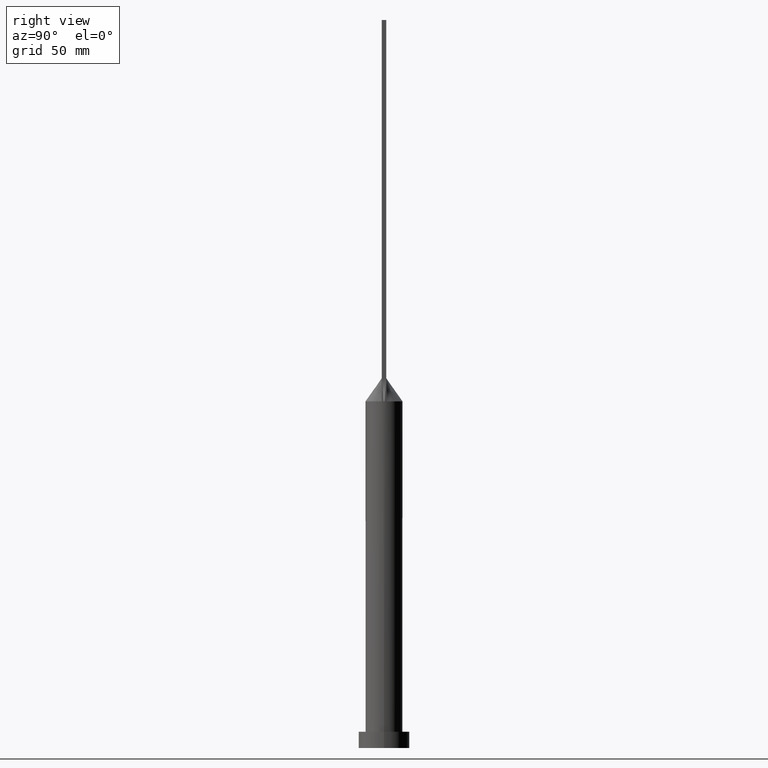
[diagram: clean part render]
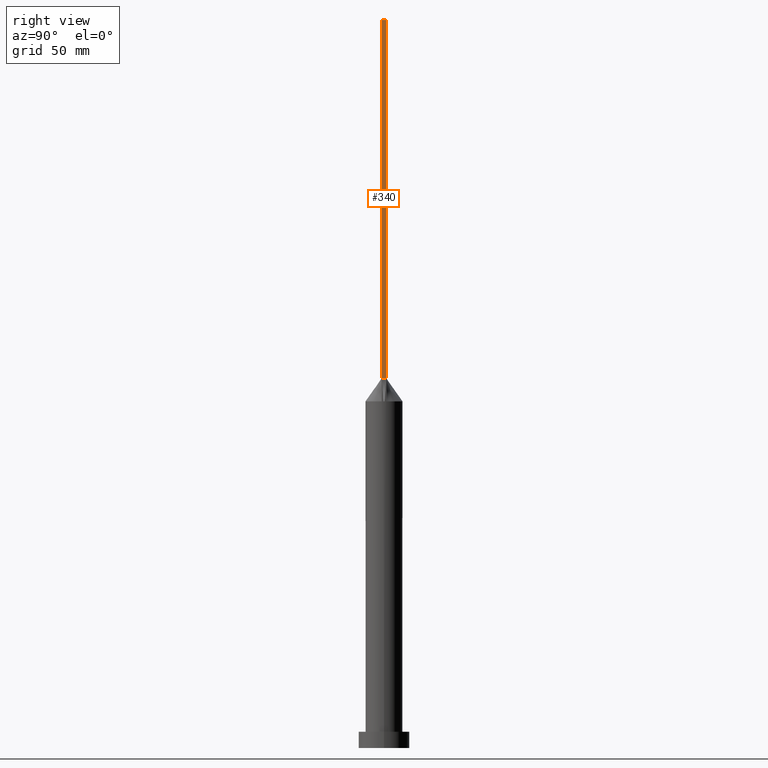
[diagram: same view with one face highlighted and labeled with its STEP entity id]
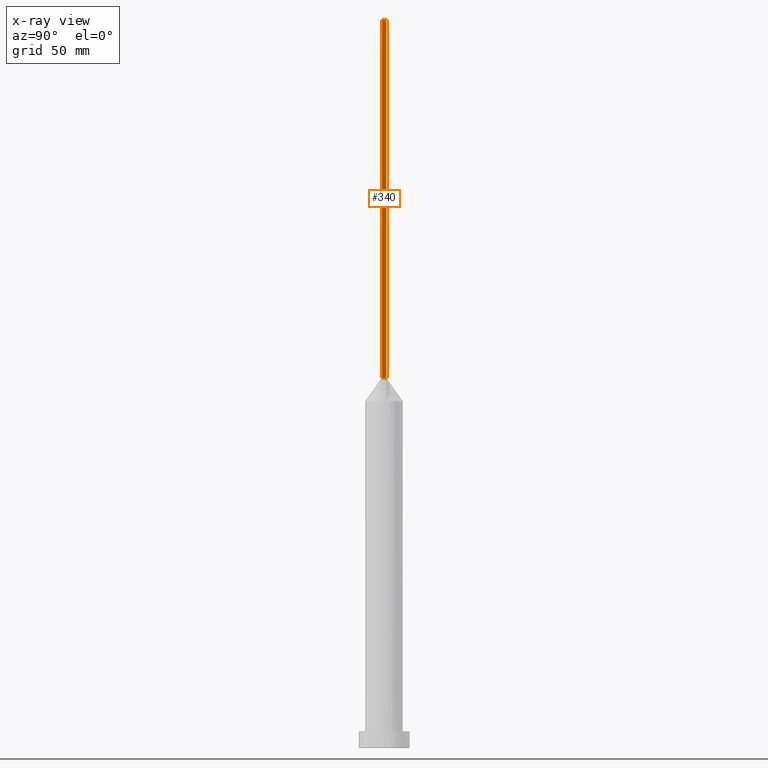
[diagram: x-ray of the same camera — body ghosted, the highlighted face saturated]
A machine part, right view. The second image highlights one B-rep face of the part: STEP entity #340.
The next image is the same camera in x-ray: the body ghosted, the highlighted face saturated — about 0% of this face is hidden behind the body in this view.
In plain terms, the highlighted planar face has unit normal (-1, 0, 0).
Its self-contained STEP definition (entity closure, byte-faithful):
#2 = LINE ( 'NONE', #356, #428 ) ;
#9 = CARTESIAN_POINT ( 'NONE',  ( 7.750000000000000000, 1.000000000000000000, 160.0000000000000000 ) ) ;
#34 = PLANE ( 'NONE',  #284 ) ;
#40 = ORIENTED_EDGE ( 'NONE', *, *, #276, .F. ) ;
#54 = ORIENTED_EDGE ( 'NONE', *, *, #354, .F. ) ;
#58 = LINE ( 'NONE', #165, #60 ) ;
#60 = VECTOR ( 'NONE', #300, 1000.000000000000000 ) ;
#86 = DIRECTION ( 'NONE',  ( -0.000000000000000000, 1.000000000000000000, -0.000000000000000000 ) ) ;
#90 = EDGE_LOOP ( 'NONE', ( #423, #54, #40, #254 ) ) ;
#118 = CARTESIAN_POINT ( 'NONE',  ( 7.750000000000000000, -0.9999999999999997780, 315.0000000000000000 ) ) ;
#127 = DIRECTION ( 'NONE',  ( -0.000000000000000000, -0.000000000000000000, -1.000000000000000000 ) ) ;
#130 = CARTESIAN_POINT ( 'NONE',  ( 7.750000000000000000, 1.000000000000000000, 160.0000000000000000 ) ) ;
#165 = CARTESIAN_POINT ( 'NONE',  ( 7.750000000000000000, -0.9999999999999997780, 315.0000000000000000 ) ) ;
#186 = VERTEX_POINT ( 'NONE', #9 ) ;
#203 = EDGE_CURVE ( 'NONE', #329, #631, #2, .T. ) ;
#225 = LINE ( 'NONE', #553, #230 ) ;
#230 = VECTOR ( 'NONE', #127, 1000.000000000000000 ) ;
#254 = ORIENTED_EDGE ( 'NONE', *, *, #203, .T. ) ;
#275 = FACE_OUTER_BOUND ( 'NONE', #90, .T. ) ;
#276 = EDGE_CURVE ( 'NONE', #329, #610, #58, .T. ) ;
#284 = AXIS2_PLACEMENT_3D ( 'NONE', #620, #612, #367 ) ;
#300 = DIRECTION ( 'NONE',  ( 0.000000000000000000, 1.000000000000000000, 0.000000000000000000 ) ) ;
#312 = DIRECTION ( 'NONE',  ( -0.000000000000000000, -0.000000000000000000, -1.000000000000000000 ) ) ;
#329 = VERTEX_POINT ( 'NONE', #118 ) ;
#340 = ADVANCED_FACE ( 'NONE', ( #275 ), #34, .F. ) ;
#354 = EDGE_CURVE ( 'NONE', #610, #186, #225, .T. ) ;
#356 = CARTESIAN_POINT ( 'NONE',  ( 7.750000000000000000, -0.9999999999999997780, 315.0000000000000000 ) ) ;
#367 = DIRECTION ( 'NONE',  ( 0.000000000000000000, 0.000000000000000000, 1.000000000000000000 ) ) ;
#423 = ORIENTED_EDGE ( 'NONE', *, *, #435, .T. ) ;
#428 = VECTOR ( 'NONE', #312, 1000.000000000000000 ) ;
#435 = EDGE_CURVE ( 'NONE', #631, #186, #476, .T. ) ;
#476 = LINE ( 'NONE', #130, #543 ) ;
#480 = CARTESIAN_POINT ( 'NONE',  ( 7.750000000000000000, 1.000000000000000000, 315.0000000000000000 ) ) ;
#543 = VECTOR ( 'NONE', #86, 1000.000000000000000 ) ;
#553 = CARTESIAN_POINT ( 'NONE',  ( 7.750000000000000000, 1.000000000000000000, 315.0000000000000000 ) ) ;
#582 = CARTESIAN_POINT ( 'NONE',  ( 7.750000000000000000, -0.9999999999999997780, 160.0000000000000000 ) ) ;
#610 = VERTEX_POINT ( 'NONE', #480 ) ;
#612 = DIRECTION ( 'NONE',  ( -1.000000000000000000, 0.000000000000000000, 0.000000000000000000 ) ) ;
#620 = CARTESIAN_POINT ( 'NONE',  ( 7.750000000000000000, -0.9999999999999997780, 315.0000000000000000 ) ) ;
#631 = VERTEX_POINT ( 'NONE', #582 ) ;